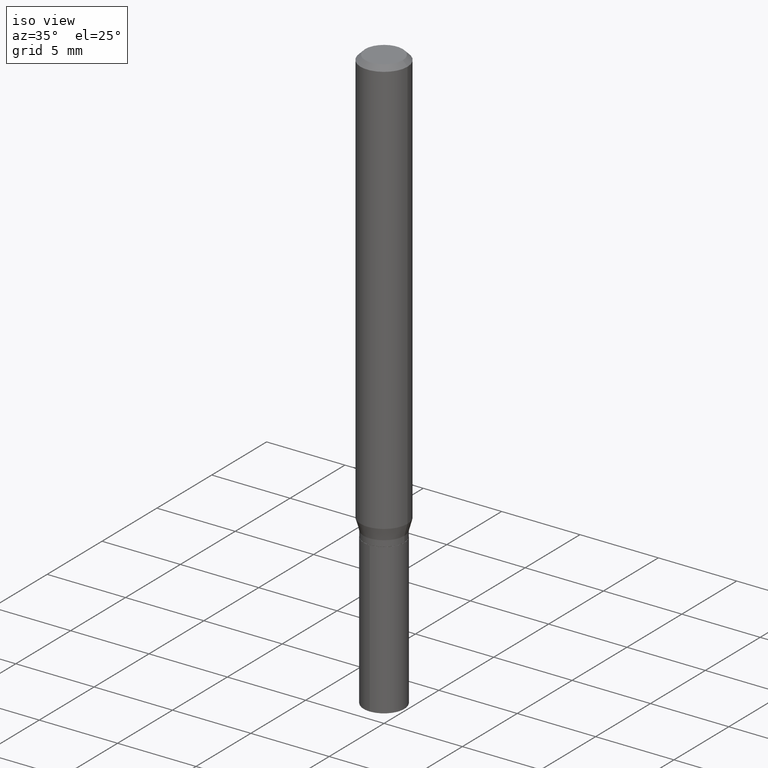
[diagram: clean part render]
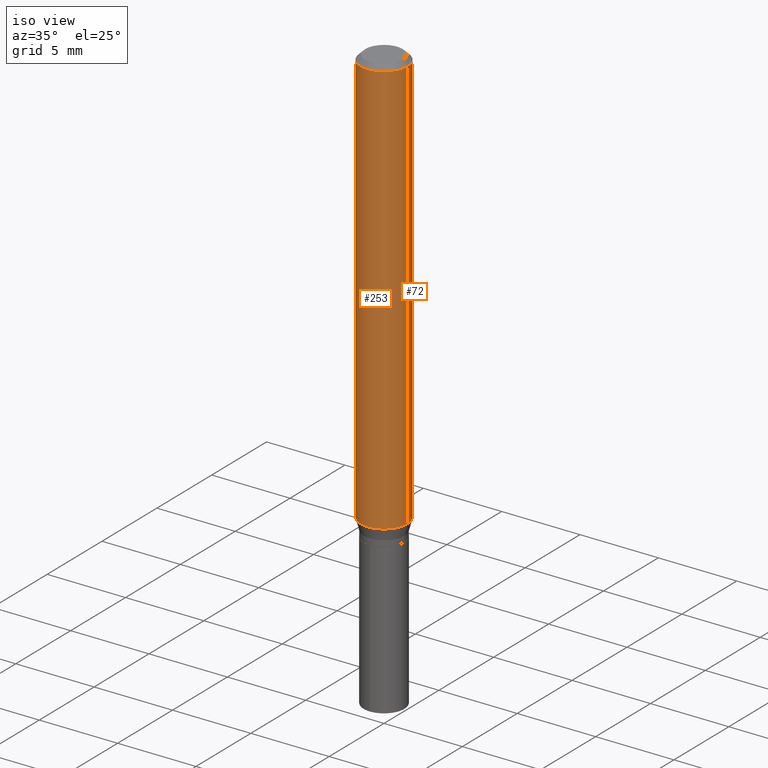
[diagram: same view with one multi-face feature highlighted, each face labeled with its STEP entity id]
A machine part, iso view. The highlighted faces form ONE feature: a constant-radius fillet chain: 2 tangent blend faces with common blend radius 1.4999 mm. The faces share edges in the B-rep.
Their STEP definitions:
[1] entity #253 (Cylinder):
#11 = LINE ( 'NONE', #49, #438 ) ;
#16 = CIRCLE ( 'NONE', #163, 0.05905000000000013710 ) ;
#19 = CARTESIAN_POINT ( 'NONE',  ( -0.05904999999999999832, -1.433726204142650015E-15, -0.01181000000000007044 ) ) ;
#32 = CARTESIAN_POINT ( 'NONE',  ( -0.05905000000000013710, -3.245793499139903371E-15, -1.049803401160583904 ) ) ;
#33 = VERTEX_POINT ( 'NONE', #126 ) ;
#37 = EDGE_CURVE ( 'NONE', #191, #33, #200, .T. ) ;
#43 = VECTOR ( 'NONE', #359, 39.37007874015748143 ) ;
#45 = EDGE_CURVE ( 'NONE', #421, #33, #431, .T. ) ;
#49 = CARTESIAN_POINT ( 'NONE',  ( -0.05905000000000006771, 4.195754854663396409E-16, -2.904631170795525045E-30 ) ) ;
#126 = CARTESIAN_POINT ( 'NONE',  ( 0.05904999999999999832, -4.535783407291118600E-16, -0.01181000000000007044 ) ) ;
#163 = AXIS2_PLACEMENT_3D ( 'NONE', #389, #466, #436 ) ;
#183 = ORIENTED_EDGE ( 'NONE', *, *, #464, .F. ) ;
#191 = VERTEX_POINT ( 'NONE', #19 ) ;
#196 = CARTESIAN_POINT ( 'NONE',  ( 0.05905000000000006771, -4.123439461173745257E-16, 2.879382386107503723E-30 ) ) ;
#199 = DIRECTION ( 'NONE',  ( -2.445468806185136597E-29, 3.491481338843145583E-15, 1.000000000000000000 ) ) ;
#200 = CIRCLE ( 'NONE', #437, 0.05904999999999999832 ) ;
#223 = ORIENTED_EDGE ( 'NONE', *, *, #37, .F. ) ;
#229 = EDGE_LOOP ( 'NONE', ( #183, #263, #382, #223 ) ) ;
#232 = CARTESIAN_POINT ( 'NONE',  ( 0.05905000000000013710, -4.077712930723618179E-15, -1.049803401160583904 ) ) ;
#244 = CARTESIAN_POINT ( 'NONE',  ( 2.888098660104663766E-31, -4.123439461173779647E-17, -0.01181000000000007044 ) ) ;
#253 = ADVANCED_FACE ( 'NONE', ( #264 ), #439, .T. ) ;
#260 = DIRECTION ( 'NONE',  ( 1.000000000000000000, -6.982962677686266711E-15, 4.876176775795936353E-29 ) ) ;
#263 = ORIENTED_EDGE ( 'NONE', *, *, #461, .T. ) ;
#264 = FACE_OUTER_BOUND ( 'NONE', #229, .T. ) ;
#289 = CARTESIAN_POINT ( 'NONE',  ( 0.000000000000000000, 0.000000000000000000, 0.000000000000000000 ) ) ;
#359 = DIRECTION ( 'NONE',  ( -2.445468806185136877E-29, 3.491481338843145188E-15, 1.000000000000000000 ) ) ;
#369 = VERTEX_POINT ( 'NONE', #32 ) ;
#382 = ORIENTED_EDGE ( 'NONE', *, *, #45, .T. ) ;
#389 = CARTESIAN_POINT ( 'NONE',  ( 2.567261470165268831E-29, -3.665368984606243258E-15, -1.049803401160583904 ) ) ;
#393 = DIRECTION ( 'NONE',  ( -2.445468806185136877E-29, 3.491481338843145188E-15, 1.000000000000000000 ) ) ;
#421 = VERTEX_POINT ( 'NONE', #232 ) ;
#431 = LINE ( 'NONE', #196, #43 ) ;
#436 = DIRECTION ( 'NONE',  ( 1.000000000000000000, -6.982962677686264344E-15, 0.000000000000000000 ) ) ;
#437 = AXIS2_PLACEMENT_3D ( 'NONE', #244, #199, #465 ) ;
#438 = VECTOR ( 'NONE', #393, 39.37007874015748143 ) ;
#439 = CYLINDRICAL_SURFACE ( 'NONE', #467, 0.05905000000000006771 ) ;
#440 = DIRECTION ( 'NONE',  ( -2.445468806185136597E-29, 3.491481338843145583E-15, 1.000000000000000000 ) ) ;
#461 = EDGE_CURVE ( 'NONE', #369, #421, #16, .T. ) ;
#464 = EDGE_CURVE ( 'NONE', #369, #191, #11, .T. ) ;
#465 = DIRECTION ( 'NONE',  ( 1.000000000000000000, -6.982962677686266711E-15, 0.000000000000000000 ) ) ;
#466 = DIRECTION ( 'NONE',  ( -2.445468806185136597E-29, 3.491481338843145583E-15, 1.000000000000000000 ) ) ;
#467 = AXIS2_PLACEMENT_3D ( 'NONE', #289, #440, #260 ) ;
[2] entity #72 (Cylinder):
#8 = DIRECTION ( 'NONE',  ( 1.000000000000000000, -6.982962677686266711E-15, 0.000000000000000000 ) ) ;
#11 = LINE ( 'NONE', #49, #438 ) ;
#13 = ORIENTED_EDGE ( 'NONE', *, *, #464, .T. ) ;
#14 = CARTESIAN_POINT ( 'NONE',  ( 0.000000000000000000, 0.000000000000000000, 0.000000000000000000 ) ) ;
#19 = CARTESIAN_POINT ( 'NONE',  ( -0.05904999999999999832, -1.433726204142650015E-15, -0.01181000000000007044 ) ) ;
#32 = CARTESIAN_POINT ( 'NONE',  ( -0.05905000000000013710, -3.245793499139903371E-15, -1.049803401160583904 ) ) ;
#33 = VERTEX_POINT ( 'NONE', #126 ) ;
#36 = DIRECTION ( 'NONE',  ( 1.000000000000000000, -6.982962677686264344E-15, 0.000000000000000000 ) ) ;
#43 = VECTOR ( 'NONE', #359, 39.37007874015748143 ) ;
#45 = EDGE_CURVE ( 'NONE', #421, #33, #431, .T. ) ;
#46 = DIRECTION ( 'NONE',  ( 1.000000000000000000, -6.982962677686266711E-15, 4.876176775795936353E-29 ) ) ;
#49 = CARTESIAN_POINT ( 'NONE',  ( -0.05905000000000006771, 4.195754854663396409E-16, -2.904631170795525045E-30 ) ) ;
#59 = CIRCLE ( 'NONE', #124, 0.05904999999999999832 ) ;
#72 = ADVANCED_FACE ( 'NONE', ( #432 ), #85, .T. ) ;
#73 = DIRECTION ( 'NONE',  ( -2.445468806185136597E-29, 3.491481338843145583E-15, 1.000000000000000000 ) ) ;
#85 = CYLINDRICAL_SURFACE ( 'NONE', #474, 0.05905000000000006771 ) ;
#124 = AXIS2_PLACEMENT_3D ( 'NONE', #456, #73, #8 ) ;
#126 = CARTESIAN_POINT ( 'NONE',  ( 0.05904999999999999832, -4.535783407291118600E-16, -0.01181000000000007044 ) ) ;
#143 = AXIS2_PLACEMENT_3D ( 'NONE', #346, #193, #36 ) ;
#157 = ORIENTED_EDGE ( 'NONE', *, *, #45, .F. ) ;
#191 = VERTEX_POINT ( 'NONE', #19 ) ;
#193 = DIRECTION ( 'NONE',  ( -2.445468806185136597E-29, 3.491481338843145583E-15, 1.000000000000000000 ) ) ;
#196 = CARTESIAN_POINT ( 'NONE',  ( 0.05905000000000006771, -4.123439461173745257E-16, 2.879382386107503723E-30 ) ) ;
#218 = ORIENTED_EDGE ( 'NONE', *, *, #325, .T. ) ;
#232 = CARTESIAN_POINT ( 'NONE',  ( 0.05905000000000013710, -4.077712930723618179E-15, -1.049803401160583904 ) ) ;
#274 = EDGE_CURVE ( 'NONE', #33, #191, #59, .T. ) ;
#325 = EDGE_CURVE ( 'NONE', #421, #369, #347, .T. ) ;
#346 = CARTESIAN_POINT ( 'NONE',  ( 2.567261470165268831E-29, -3.665368984606243258E-15, -1.049803401160583904 ) ) ;
#347 = CIRCLE ( 'NONE', #143, 0.05905000000000013710 ) ;
#348 = ORIENTED_EDGE ( 'NONE', *, *, #274, .F. ) ;
#359 = DIRECTION ( 'NONE',  ( -2.445468806185136877E-29, 3.491481338843145188E-15, 1.000000000000000000 ) ) ;
#369 = VERTEX_POINT ( 'NONE', #32 ) ;
#393 = DIRECTION ( 'NONE',  ( -2.445468806185136877E-29, 3.491481338843145188E-15, 1.000000000000000000 ) ) ;
#395 = DIRECTION ( 'NONE',  ( -2.445468806185136597E-29, 3.491481338843145583E-15, 1.000000000000000000 ) ) ;
#412 = EDGE_LOOP ( 'NONE', ( #218, #13, #348, #157 ) ) ;
#421 = VERTEX_POINT ( 'NONE', #232 ) ;
#431 = LINE ( 'NONE', #196, #43 ) ;
#432 = FACE_OUTER_BOUND ( 'NONE', #412, .T. ) ;
#438 = VECTOR ( 'NONE', #393, 39.37007874015748143 ) ;
#456 = CARTESIAN_POINT ( 'NONE',  ( 2.888098660104663766E-31, -4.123439461173779647E-17, -0.01181000000000007044 ) ) ;
#464 = EDGE_CURVE ( 'NONE', #369, #191, #11, .T. ) ;
#474 = AXIS2_PLACEMENT_3D ( 'NONE', #14, #395, #46 ) ;